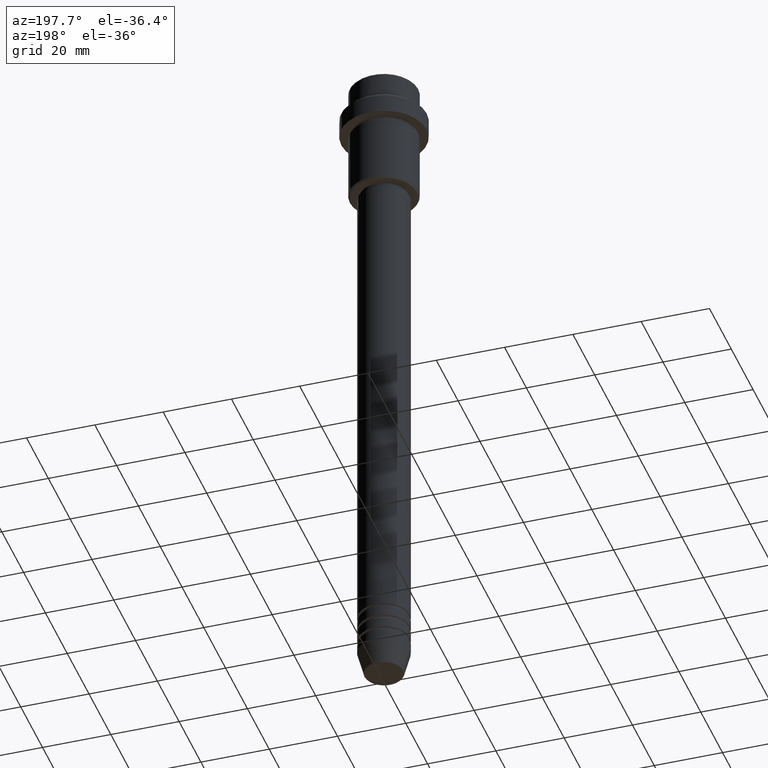
[diagram: clean part render]
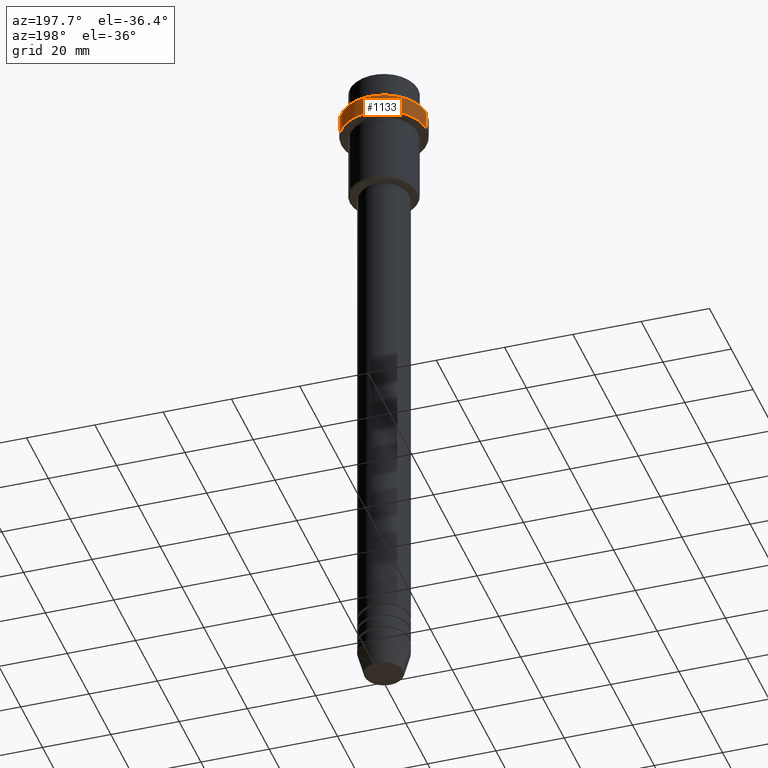
[diagram: same view with one face highlighted and labeled with its STEP entity id]
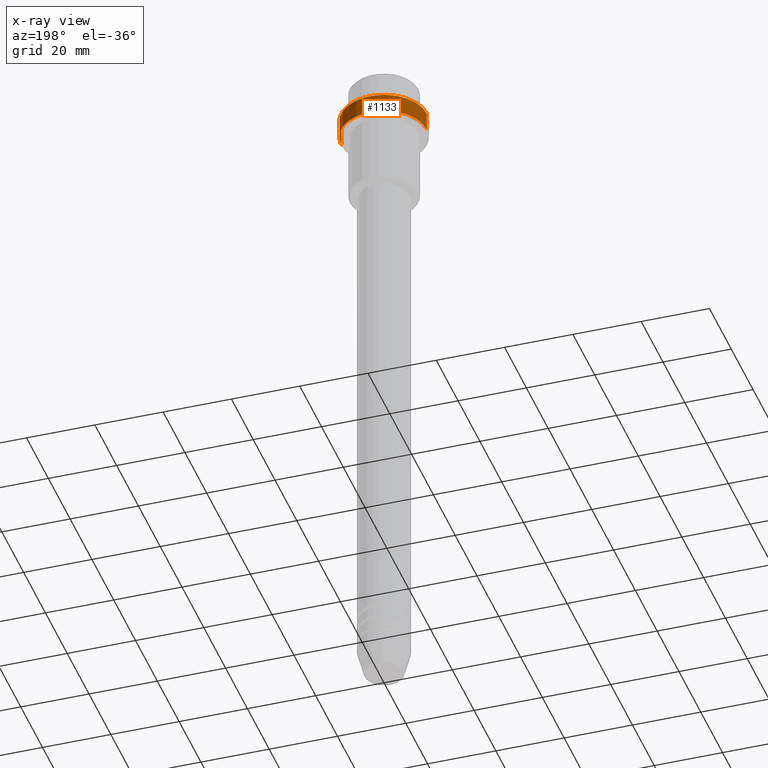
[diagram: x-ray of the same camera — body ghosted, the highlighted face saturated]
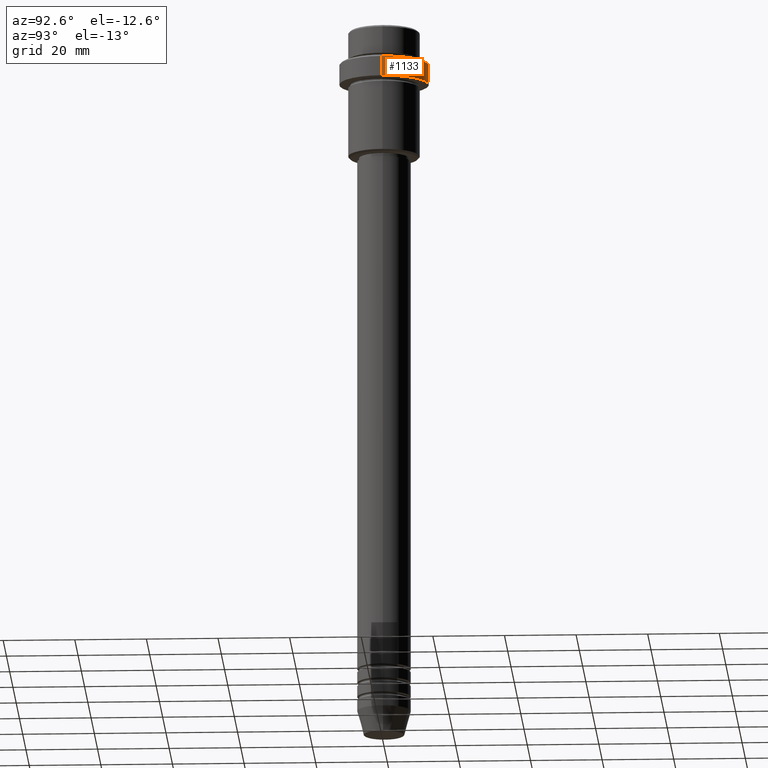
[diagram: same view with one face highlighted and labeled with its STEP entity id]
A machine part, auxiliary view. The second image highlights one B-rep face of the part: STEP entity #1133.
The next image is the same camera in x-ray: the body ghosted, the highlighted face saturated — about 0% of this face is hidden behind the body in this view.
A second angle (auxiliary view) of the same face is appended — the face is thin or edge-on in the first view.
In plain terms, the highlighted cylindrical surface (partial cylindrical patch) has radius 12.5 mm, axis along (-0, -0, 1).
Its self-contained STEP definition (entity closure, byte-faithful):
#17 = VERTEX_POINT ( 'NONE', #351 ) ;
#46 = CARTESIAN_POINT ( 'NONE',  ( 0.000000000000000000, 0.000000000000000000, -15.00000000000000000 ) ) ;
#64 = DIRECTION ( 'NONE',  ( 0.000000000000000000, 0.000000000000000000, -1.000000000000000000 ) ) ;
#69 = DIRECTION ( 'NONE',  ( -0.000000000000000000, -0.000000000000000000, 1.000000000000000000 ) ) ;
#152 = AXIS2_PLACEMENT_3D ( 'NONE', #323, #1307, #948 ) ;
#169 = VECTOR ( 'NONE', #1413, 1000.000000000000000 ) ;
#175 = ORIENTED_EDGE ( 'NONE', *, *, #498, .T. ) ;
#196 = CARTESIAN_POINT ( 'NONE',  ( -12.50000000000000000, 1.530808498934191521E-15, 0.000000000000000000 ) ) ;
#251 = EDGE_CURVE ( 'NONE', #1023, #556, #870, .T. ) ;
#279 = CARTESIAN_POINT ( 'NONE',  ( 0.000000000000000000, 0.000000000000000000, -9.499999999999976907 ) ) ;
#323 = CARTESIAN_POINT ( 'NONE',  ( 0.000000000000000000, 0.000000000000000000, 0.000000000000000000 ) ) ;
#351 = CARTESIAN_POINT ( 'NONE',  ( 12.50000000000000000, 0.000000000000000000, -9.499999999999976907 ) ) ;
#353 = CIRCLE ( 'NONE', #1091, 12.50000000000000000 ) ;
#498 = EDGE_CURVE ( 'NONE', #556, #17, #1015, .T. ) ;
#509 = CARTESIAN_POINT ( 'NONE',  ( -12.50000000000000000, 1.530808498934191521E-15, -9.499999999999976907 ) ) ;
#525 = FACE_OUTER_BOUND ( 'NONE', #1374, .T. ) ;
#556 = VERTEX_POINT ( 'NONE', #509 ) ;
#587 = EDGE_CURVE ( 'NONE', #853, #1023, #353, .T. ) ;
#607 = EDGE_CURVE ( 'NONE', #853, #17, #1178, .T. ) ;
#613 = CARTESIAN_POINT ( 'NONE',  ( 12.50000000000000000, 0.000000000000000000, 0.000000000000000000 ) ) ;
#619 = DIRECTION ( 'NONE',  ( 1.000000000000000000, 0.000000000000000000, 0.000000000000000000 ) ) ;
#815 = AXIS2_PLACEMENT_3D ( 'NONE', #279, #64, #921 ) ;
#853 = VERTEX_POINT ( 'NONE', #1217 ) ;
#870 = LINE ( 'NONE', #196, #169 ) ;
#921 = DIRECTION ( 'NONE',  ( 1.000000000000000000, 0.000000000000000000, 0.000000000000000000 ) ) ;
#948 = DIRECTION ( 'NONE',  ( 1.000000000000000000, 0.000000000000000000, 0.000000000000000000 ) ) ;
#977 = CYLINDRICAL_SURFACE ( 'NONE', #152, 12.50000000000000000 ) ;
#1015 = CIRCLE ( 'NONE', #815, 12.50000000000000000 ) ;
#1021 = ORIENTED_EDGE ( 'NONE', *, *, #607, .F. ) ;
#1023 = VERTEX_POINT ( 'NONE', #1272 ) ;
#1038 = ORIENTED_EDGE ( 'NONE', *, *, #251, .T. ) ;
#1091 = AXIS2_PLACEMENT_3D ( 'NONE', #46, #1369, #619 ) ;
#1133 = ADVANCED_FACE ( 'NONE', ( #525 ), #977, .T. ) ;
#1142 = VECTOR ( 'NONE', #69, 1000.000000000000000 ) ;
#1178 = LINE ( 'NONE', #613, #1142 ) ;
#1217 = CARTESIAN_POINT ( 'NONE',  ( 12.50000000000000000, 0.000000000000000000, -15.00000000000000000 ) ) ;
#1272 = CARTESIAN_POINT ( 'NONE',  ( -12.50000000000000000, 1.530808498934191521E-15, -15.00000000000000000 ) ) ;
#1307 = DIRECTION ( 'NONE',  ( -0.000000000000000000, -0.000000000000000000, 1.000000000000000000 ) ) ;
#1355 = ORIENTED_EDGE ( 'NONE', *, *, #587, .T. ) ;
#1369 = DIRECTION ( 'NONE',  ( -0.000000000000000000, -0.000000000000000000, 1.000000000000000000 ) ) ;
#1374 = EDGE_LOOP ( 'NONE', ( #1355, #1038, #175, #1021 ) ) ;
#1413 = DIRECTION ( 'NONE',  ( -0.000000000000000000, -0.000000000000000000, 1.000000000000000000 ) ) ;